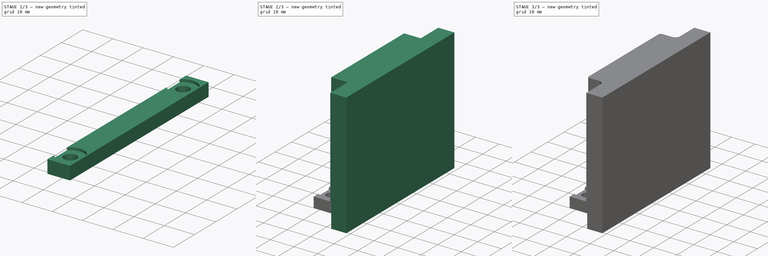
[diagram: build sequence overview — one tinted view per stage of 3, left to right]
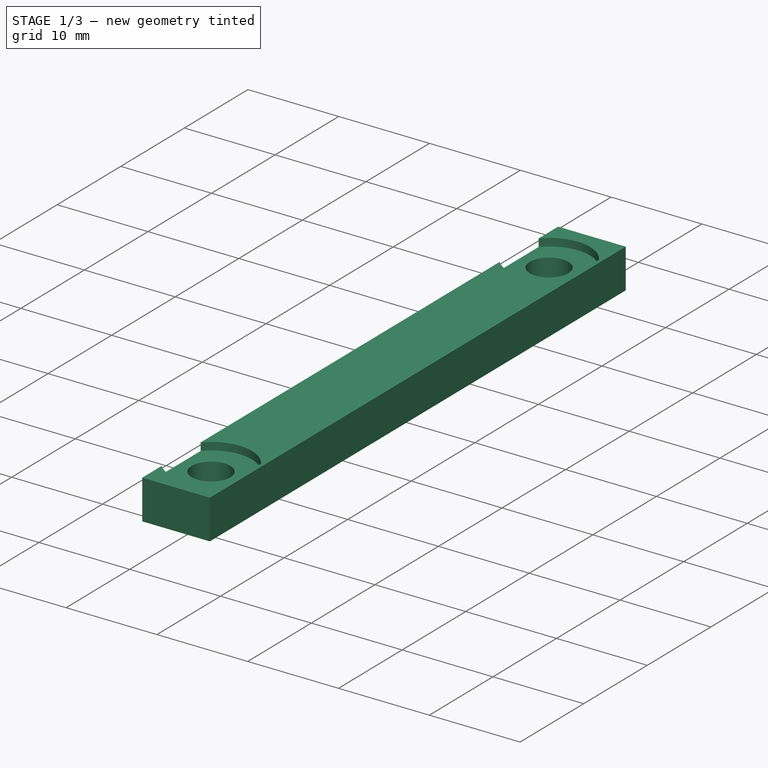
[diagram: stage 1 of 3 — iso view after this stage's code; geometry added in this stage tinted green]
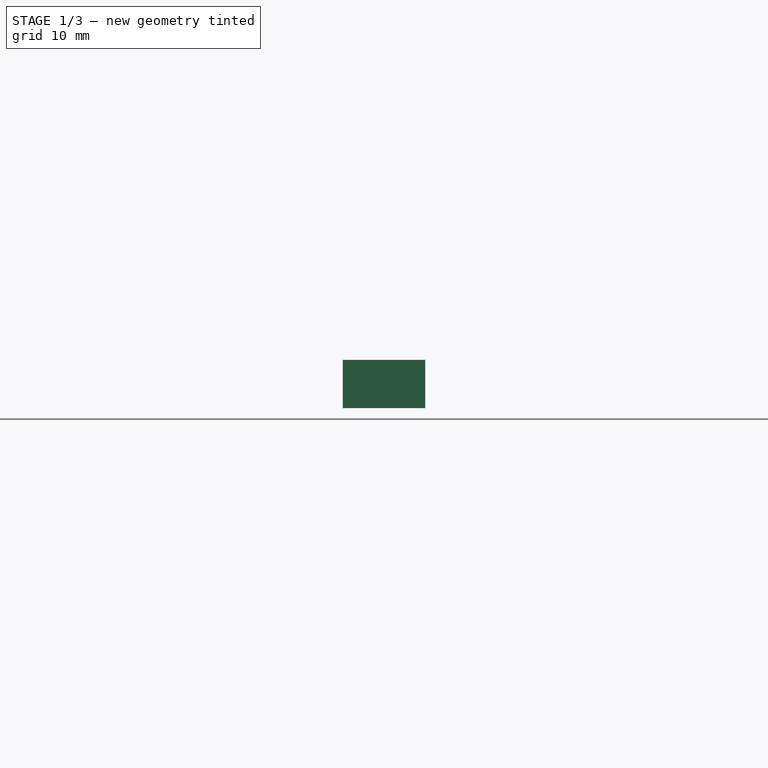
[diagram: stage 1 of 3 — front view after this stage's code; geometry added in this stage tinted green]
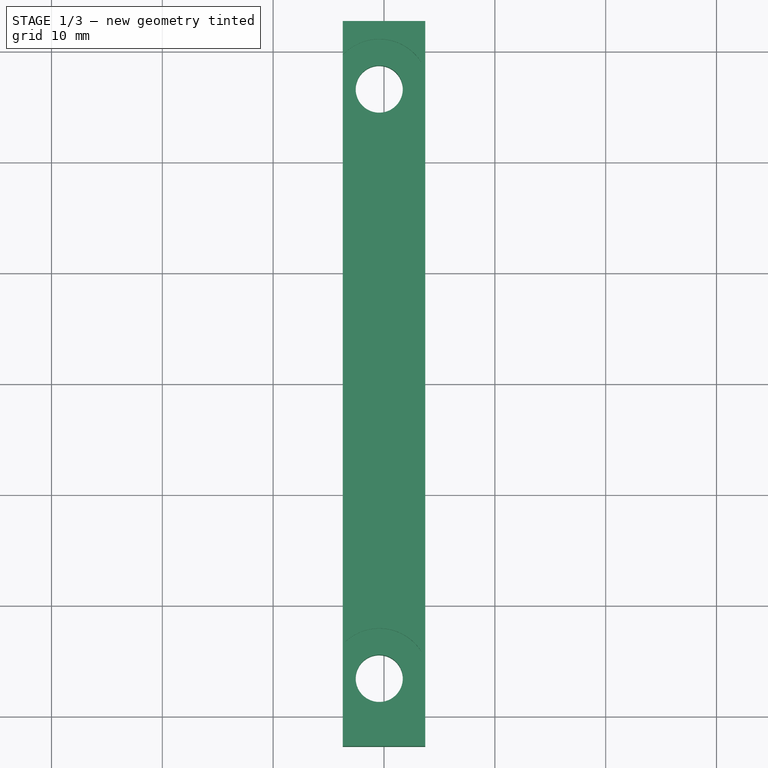
[diagram: stage 1 of 3 — top view after this stage's code; geometry added in this stage tinted green]
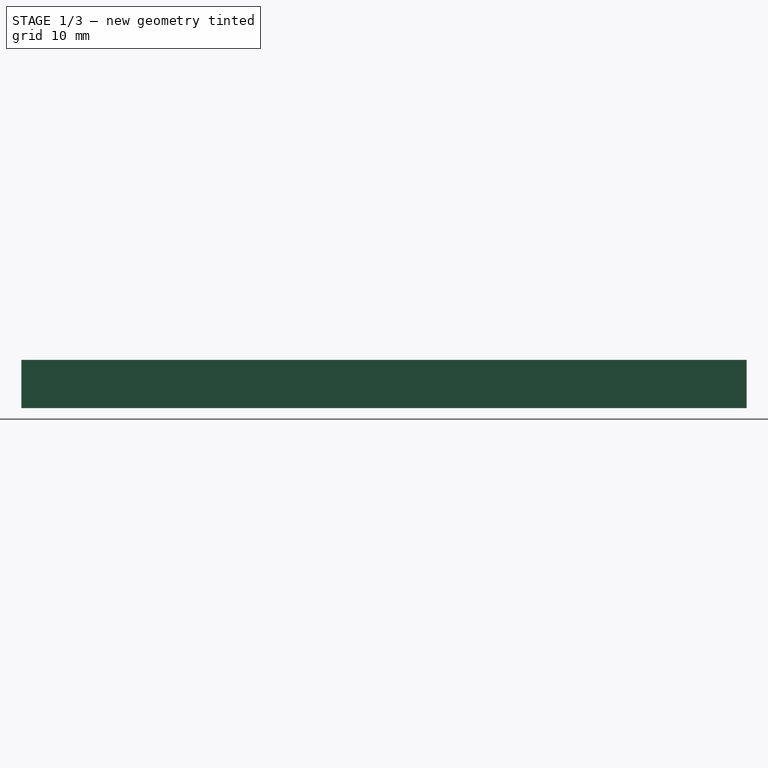
[diagram: stage 1 of 3 — right view after this stage's code; geometry added in this stage tinted green]
FCSTD DOCUMENT  (FreeCAD 0.21R33771 (Git))
Label: spacer-2
License: All rights reserved
LicenseURL: http://en.wikipedia.org/wiki/All_rights_reserved
objects: PartDesign::Pad×4, Sketcher::SketchObject×3, PartDesign::Fillet×2, PartDesign::Plane×1, PartDesign::Pocket×1, PartDesign::Body×1
note: 19 computed .brp shape members not serialized (recipe doc carries the construction recipe); baked Part::Feature solids carry a one-line shape summary decoded from their .brp

FEATURE [Sketcher::SketchObject] Sketch
  FullyConstrained = true
  MapMode = 5
  Support = -> [XY_Plane]
  sketch-geometry (10):
    g0: LineSegment StartX=3.725 StartY=-32.71 StartZ=0 EndX=3.725 EndY=32.71 EndZ=0
    g1: LineSegment StartX=3.725 StartY=32.71 StartZ=0 EndX=-3.725 EndY=32.71 EndZ=0
    g2: LineSegment StartX=-3.725 StartY=32.71 StartZ=0 EndX=-3.725 EndY=-32.71 EndZ=0
    g3: LineSegment StartX=-3.725 StartY=-32.71 StartZ=0 EndX=3.725 EndY=-32.71 EndZ=0
    g4: GeomPoint X=0 Y=0 Z=0
    g5: LineSegment StartX=-0.43 StartY=26.585 StartZ=0 EndX=-0.43 EndY=-26.585 EndZ=0
    g6: LineSegment StartX=0 StartY=0 StartZ=0 EndX=-0.43 EndY=0 EndZ=0
    g7: Circle CenterX=-0.43 CenterY=-26.585 CenterZ=0 NormalX=0 NormalY=0 NormalZ=1 AngleXU=0 Radius=2.125
    g8: Circle CenterX=-0.43 CenterY=26.585 CenterZ=0 NormalX=0 NormalY=0 NormalZ=1 AngleXU=0 Radius=2.125
    g9: LineSegment StartX=-0.43 StartY=-32.71 StartZ=0 EndX=-0.43 EndY=-28.71 EndZ=0
  constraints (26):
    c: Coincident(g0,g1)
    c: Coincident(g1,g2)
    c: Coincident(g2,g3)
    c: Coincident(g3,g0)
    c: Horizontal(g1)
    c: Horizontal(g3)
    c: Vertical(g0)
    c: Vertical(g2)
    c: Symmetric(g1,g0,g4)
    c: Coincident(g4,g-1)
    c: Distance(g1) = 7.45
    c: Symmetric(g5,g5,g-1)
    c: Coincident(g6,g4)
    c: PointOnObject(g6,g5)
    c: PointOnObject(g6,g-1)
    c: Distance(g6) = 0.43
    c: Distance(g5) = 53.17
    c: Coincident(g7,g5)
    c: Coincident(g8,g5)
    c: Equal(g8,g7)
    c: Diameter(g7) = 4.25
    c: PointOnObject(g9,g3)
    c: PointOnObject(g9,g7)
    c: Vertical(g9)
    c: Vertical(g9,g7)
    c: Distance(g9) = 4
FEATURE [PartDesign::Pad] Pad
  Direction = (0,0,1)
  Length = 4.35
  Length2 = 10
  Profile = -> Sketch
  ReferenceAxis = -> Sketch [N_Axis]
  Type = 0
FEATURE [PartDesign::Plane] DatumPlane
  Length = 61.4385
  MapMode = 5
  Placement = pos=(0,0,4.35) rot=(0,0,1;0rad)
  ResizeMode = 0
  Support = -> [Pad]
  Width = 76.8585
FEATURE [Sketcher::SketchObject] Sketch001
  ExternalGeometry = -> [Pad]
  FullyConstrained = true
  MapMode = 5
  Placement = pos=(0,0,4.35) rot=(0,0,1;0rad)
  Support = -> [DatumPlane]
  sketch-geometry (10):
    g0: ArcOfCircle CenterX=-0.43 CenterY=-26.585 CenterZ=0 NormalX=0 NormalY=0 NormalZ=1 AngleXU=0 Radius=4.5 StartAngle=0.575558 EndAngle=2.39238
    g1: ArcOfCircle CenterX=-0.43 CenterY=-26.585 CenterZ=0 NormalX=0 NormalY=0 NormalZ=1 AngleXU=0 Radius=4.5 StartAngle=3.89081 EndAngle=5.70763
    g2: LineSegment StartX=3.345 StartY=-24.1356 StartZ=0 EndX=3.345 EndY=-29.0344 EndZ=0
    g3: LineSegment StartX=-3.725 StartY=-23.5202 StartZ=0 EndX=-3.725 EndY=-29.6498 EndZ=0
    g4: ArcOfCircle CenterX=-0.43 CenterY=26.585 CenterZ=0 NormalX=0 NormalY=0 NormalZ=1 AngleXU=0 Radius=4.5 StartAngle=3.89081 EndAngle=5.70763
    g5: ArcOfCircle CenterX=-0.43 CenterY=26.585 CenterZ=0 NormalX=0 NormalY=0 NormalZ=1 AngleXU=0 Radius=4.5 StartAngle=0.575558 EndAngle=2.39238
    g6: LineSegment StartX=3.345 StartY=29.0344 StartZ=0 EndX=3.345 EndY=24.1356 EndZ=0
    g7: LineSegment StartX=-3.725 StartY=29.6498 StartZ=0 EndX=-3.725 EndY=23.5202 EndZ=0
    g8: LineSegment StartX=3.345 StartY=-26.585 StartZ=0 EndX=1.695 EndY=-26.585 EndZ=0
    g9: LineSegment StartX=3.345 StartY=26.585 StartZ=0 EndX=1.695 EndY=26.585 EndZ=0
  constraints (30):
    c: Coincident(g0,g-3)
    c: PointOnObject(g0,g-4)
    c: Diameter(g0) = 9
    c: Coincident(g1,g0)
    c: PointOnObject(g1,g-4)
    c: Coincident(g2,g0)
    c: Coincident(g2,g1)
    c: Coincident(g3,g0)
    c: Coincident(g3,g1)
    c: Coincident(g4,g-5)
    c: PointOnObject(g4,g-4)
    c: Equal(g4,g0)
    c: Coincident(g5,g4)
    c: PointOnObject(g5,g-4)
    c: Coincident(g6,g5)
    c: Coincident(g6,g4)
    c: Coincident(g7,g5)
    c: Coincident(g7,g4)
    c: PointOnObject(g8,g2)
    c: PointOnObject(g8,g-3)
    c: Horizontal(g8)
    c: Horizontal(g8,g0)
    c: Symmetric(g1,g0,g8)
    c: Distance(g8) = 1.65
    c: PointOnObject(g9,g6)
    c: PointOnObject(g9,g-5)
    c: Horizontal(g9)
    c: Horizontal(g4,g9)
    c: Symmetric(g4,g5,g9)
    c: Equal(g9,g8)
FEATURE [PartDesign::Pocket] Pocket
  BaseFeature = -> Pad
  Direction = (0,0,-1)
  Length = 0.85
  Length2 = 5
  Profile = -> Sketch001
  ReferenceAxis = -> Sketch001 [N_Axis]
  Type = 0
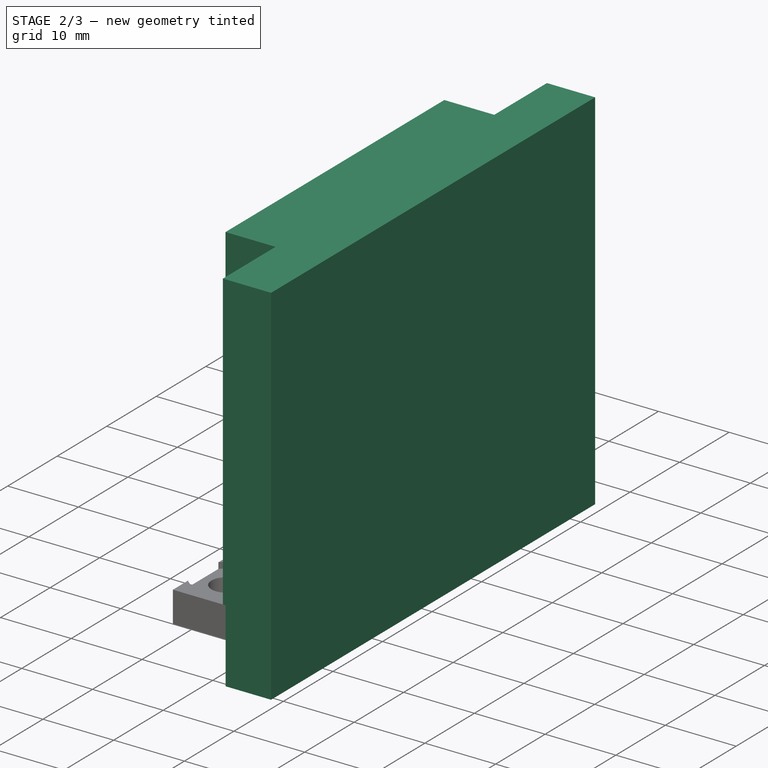
[diagram: stage 2 of 3 — iso view after this stage's code; geometry added in this stage tinted green]
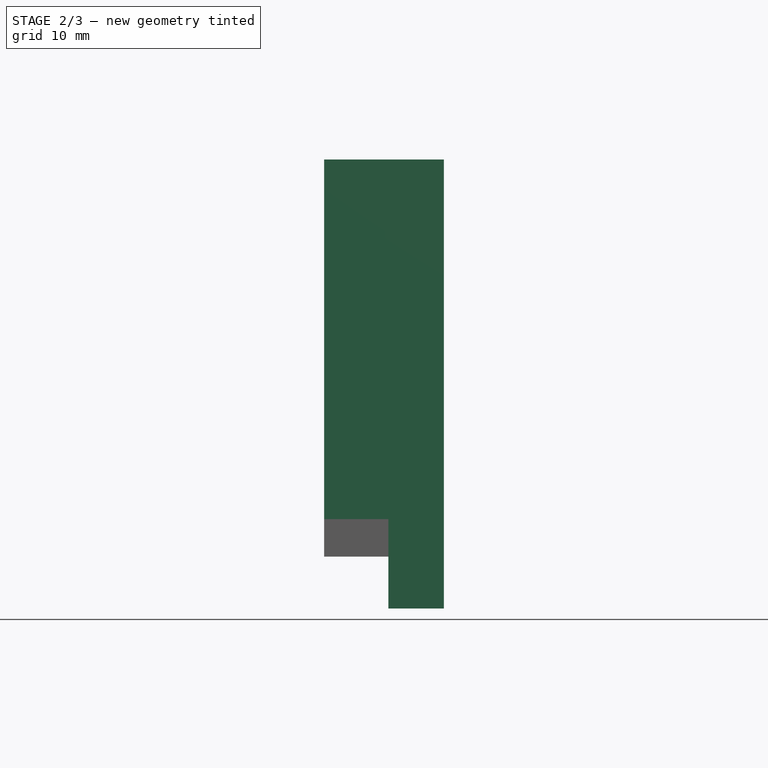
[diagram: stage 2 of 3 — front view after this stage's code; geometry added in this stage tinted green]
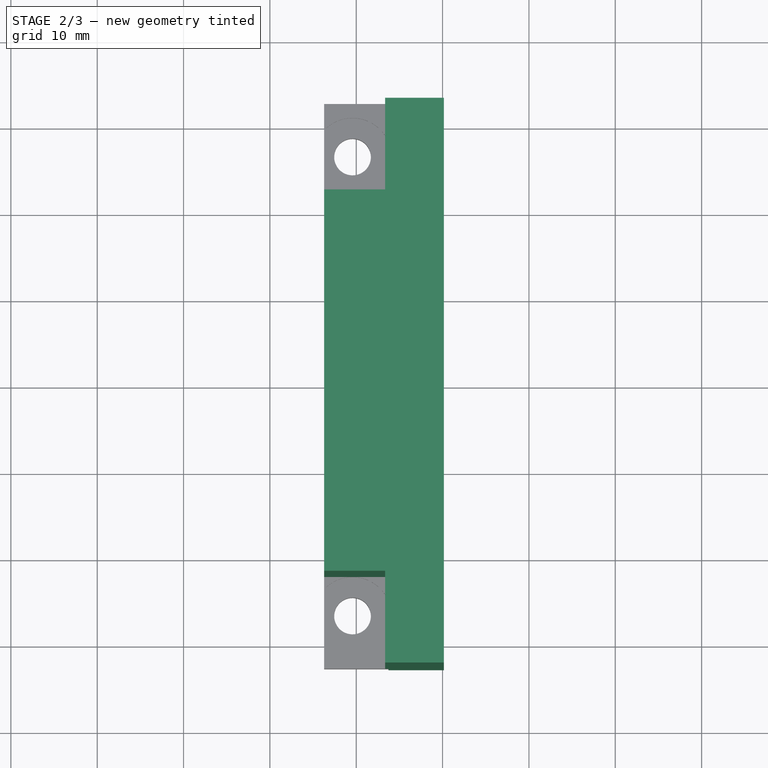
[diagram: stage 2 of 3 — top view after this stage's code; geometry added in this stage tinted green]
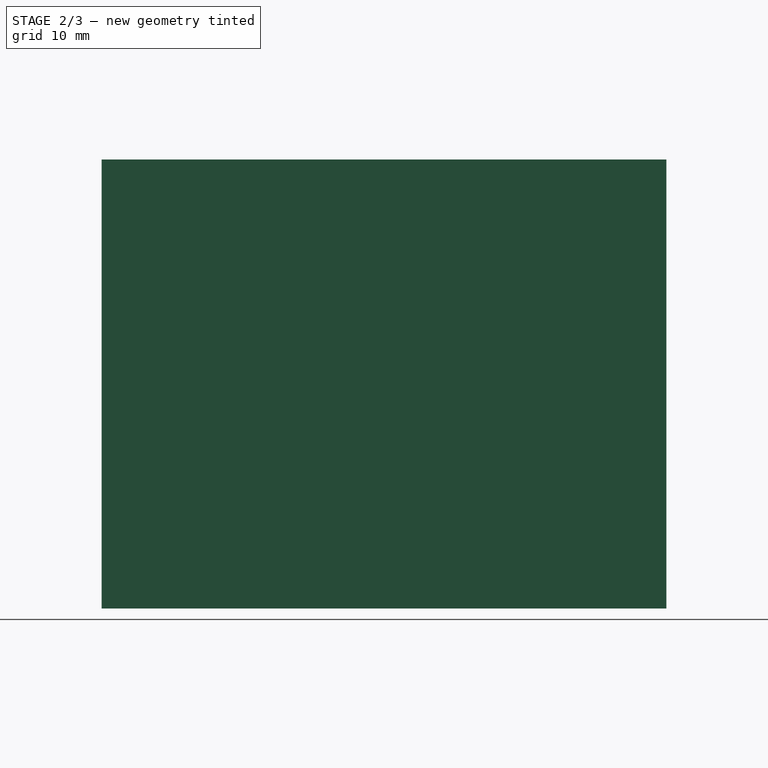
[diagram: stage 2 of 3 — right view after this stage's code; geometry added in this stage tinted green]
FEATURE [PartDesign::Pad] Pad001
  BaseFeature = -> Pocket
  Direction = (1,0,0)
  Length = 6.43
  Length2 = 10
  Profile = -> Pocket [Face1]
  Type = 0
FEATURE [PartDesign::Pad] Pad002
  BaseFeature = -> Pad001
  Direction = (0,0,-1)
  Length = 6
  Length2 = 10
  Profile = -> Pad001 [Face13]
  Type = 0
FEATURE [Sketcher::SketchObject] Sketch002
  ExternalGeometry = -> [Pad002]
  FullyConstrained = true
  MapMode = 5
  Placement = pos=(0,0,4.35) rot=(0,0,1;0rad)
  Support = -> [Pad002]
  sketch-geometry (12):
    g0: LineSegment StartX=10.155 StartY=32.71 StartZ=0 EndX=10.155 EndY=-32.71 EndZ=0
    g1: LineSegment StartX=-3.725 StartY=-22.085 StartZ=0 EndX=3.345 EndY=-22.085 EndZ=0
    g2: LineSegment StartX=3.345 StartY=-22.085 StartZ=0 EndX=3.345 EndY=-32.71 EndZ=0
    g3: LineSegment StartX=3.345 StartY=-32.71 StartZ=0 EndX=10.155 EndY=-32.71 EndZ=0
    g4: LineSegment StartX=-0.43 StartY=-26.585 StartZ=0 EndX=3.345 EndY=-26.585 EndZ=0
    g5: LineSegment StartX=-0.43 StartY=-26.585 StartZ=0 EndX=-0.43 EndY=-22.085 EndZ=0
    g6: LineSegment StartX=-3.725 StartY=-22.085 StartZ=0 EndX=-3.725 EndY=22.085 EndZ=0
    g7: LineSegment StartX=10.155 StartY=32.71 StartZ=0 EndX=3.345 EndY=32.71 EndZ=0
    g8: LineSegment StartX=3.345 StartY=32.71 StartZ=0 EndX=3.345 EndY=22.085 EndZ=0
    g9: LineSegment StartX=3.345 StartY=22.085 StartZ=0 EndX=-3.725 EndY=22.085 EndZ=0
    g10: LineSegment StartX=-0.43 StartY=26.585 StartZ=0 EndX=3.345 EndY=26.585 EndZ=0
    g11: LineSegment StartX=-0.43 StartY=26.585 StartZ=0 EndX=-0.43 EndY=22.085 EndZ=0
  constraints (34):
    c: Coincident(g0,g-6)
    c: Coincident(g0,g-5)
    c: PointOnObject(g1,g-4)
    c: Horizontal(g1)
    c: Coincident(g2,g1)
    c: PointOnObject(g2,g-5)
    c: Vertical(g2)
    c: Coincident(g3,g2)
    c: Coincident(g3,g0)
    c: Coincident(g4,g-7)
    c: PointOnObject(g4,g2)
    c: Horizontal(g4)
    c: Coincident(g5,g4)
    c: PointOnObject(g5,g1)
    c: Vertical(g5)
    c: PointOnObject(g4,g-10)
    c: PointOnObject(g5,g-9)
    c: Coincident(g6,g1)
    c: PointOnObject(g6,g-4)
    c: Coincident(g7,g0)
    c: PointOnObject(g7,g-6)
    c: Coincident(g8,g7)
    c: Coincident(g9,g8)
    c: Coincident(g9,g6)
    c: Horizontal(g9)
    c: Vertical(g8)
    c: Coincident(g10,g-8)
    c: PointOnObject(g10,g8)
    c: Horizontal(g10)
    c: Coincident(g11,g10)
    c: PointOnObject(g11,g9)
    c: Vertical(g11)
    c: PointOnObject(g11,g-11)
    c: PointOnObject(g10,g-12)
FEATURE [PartDesign::Pad] Pad003
  BaseFeature = -> Pad002
  Direction = (0,0,1)
  Length = 41.65
  Length2 = 10
  Profile = -> Sketch002
  ReferenceAxis = -> Sketch002 [N_Axis]
  Type = 0
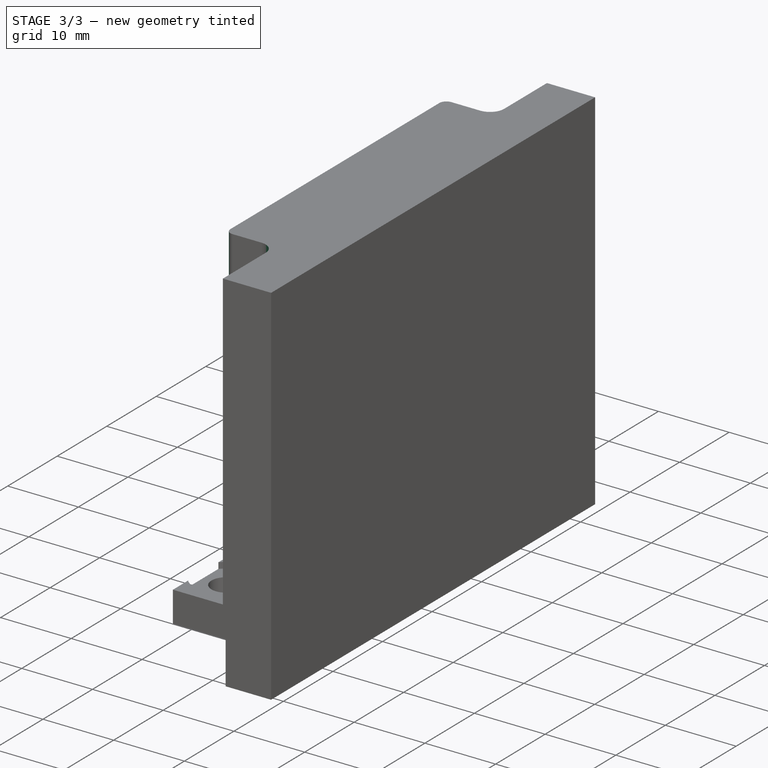
[diagram: stage 3 of 3 — iso view after this stage's code; geometry added in this stage tinted green]
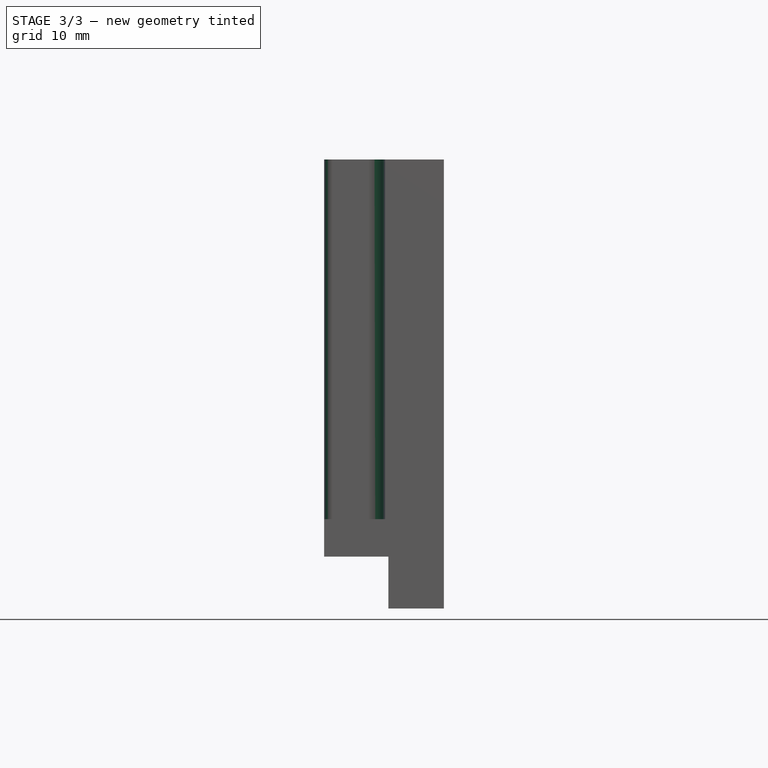
[diagram: stage 3 of 3 — front view after this stage's code; geometry added in this stage tinted green]
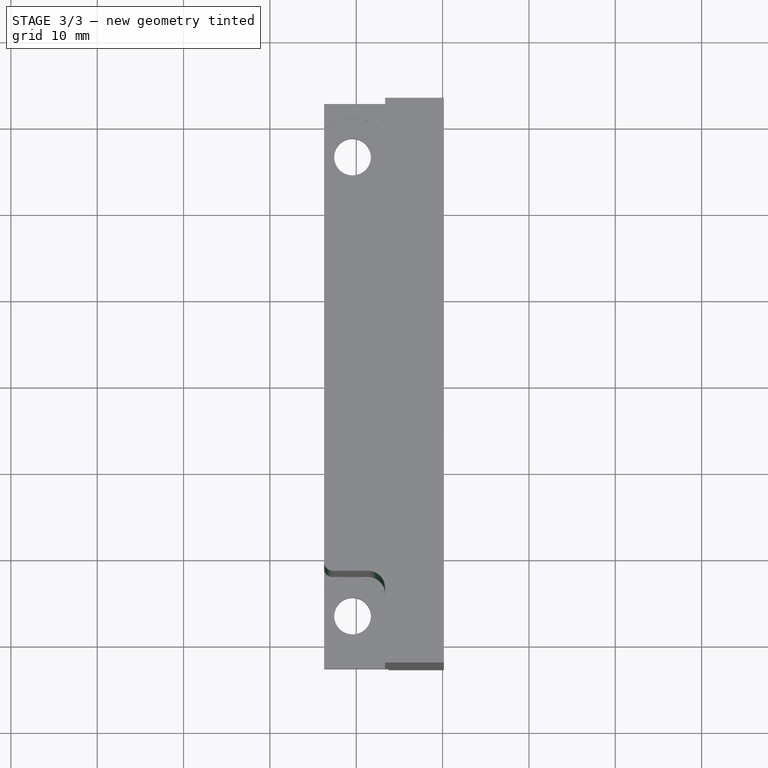
[diagram: stage 3 of 3 — top view after this stage's code; geometry added in this stage tinted green]
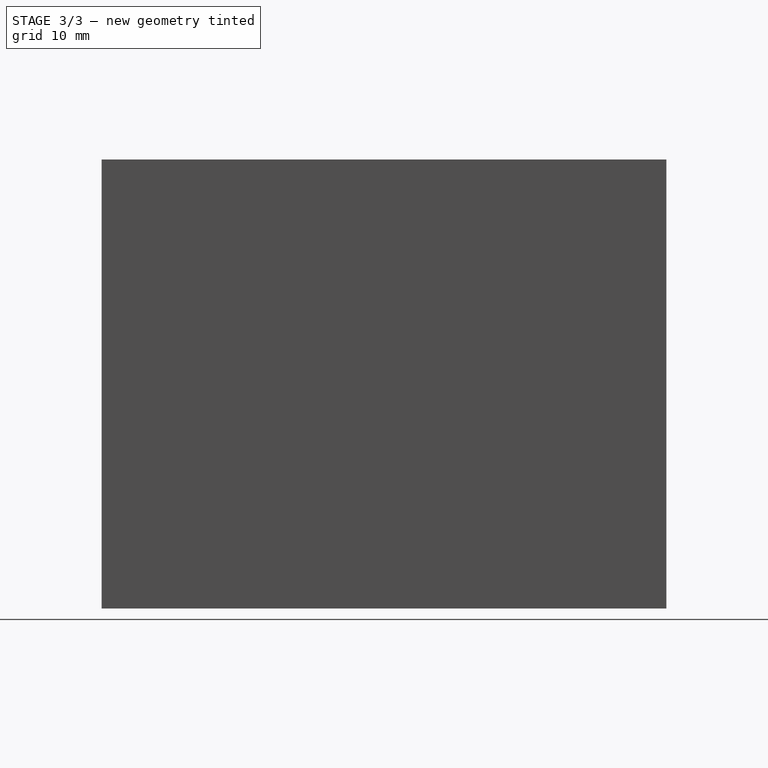
[diagram: stage 3 of 3 — right view after this stage's code; geometry added in this stage tinted green]
FEATURE [PartDesign::Fillet] Fillet
  Base = -> Pad003 [Edge67,Edge78]
  BaseFeature = -> Pad003
  Radius = 2
  SupportTransform = false
  UseAllEdges = false
FEATURE [PartDesign::Fillet] Fillet001
  Base = -> Fillet [Edge30,Edge40]
  BaseFeature = -> Fillet
  Radius = 1
  SupportTransform = false
  UseAllEdges = false
FEATURE [PartDesign::Body] Body
  Group = -> [Sketch,Pad,DatumPlane,Sketch001,Pocket,Pad001,Pad002,Sketch002,Pad003,Fillet,Fillet001]
  Origin = -> Origin
  Tip = -> Fillet001
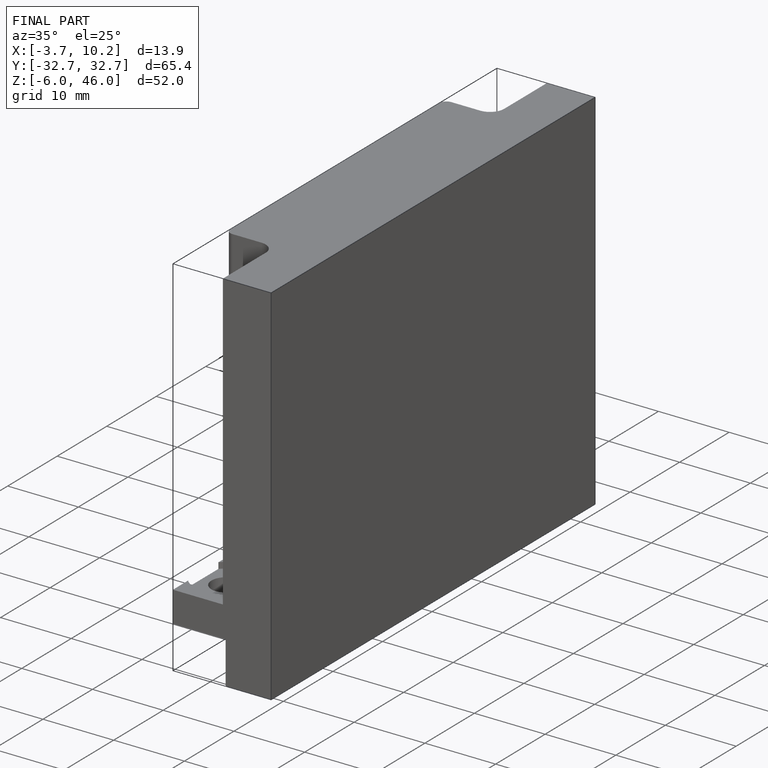
[diagram: finished part — iso view with bounding-box wireframe]
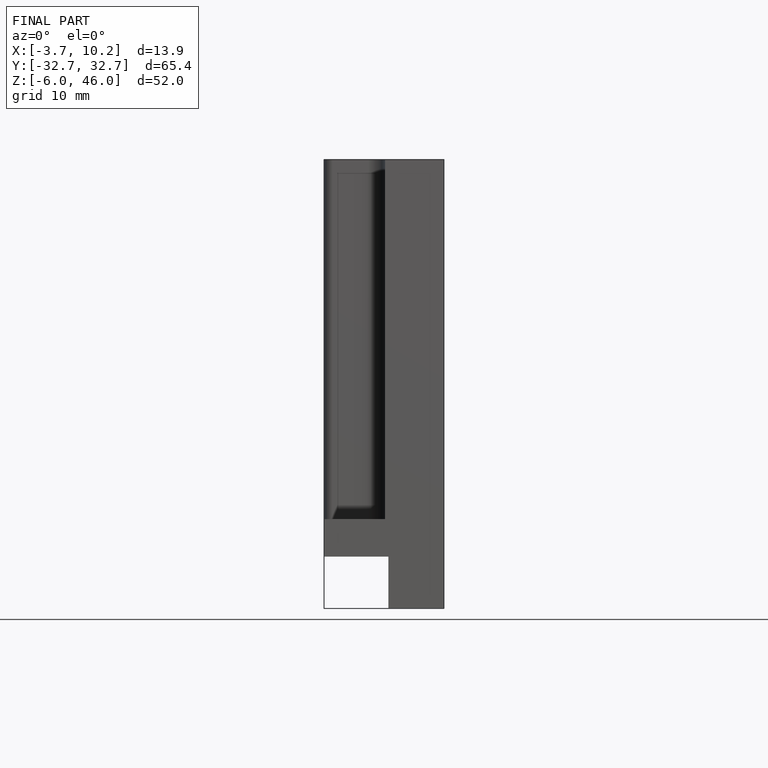
[diagram: finished part — front view with bounding-box wireframe]
